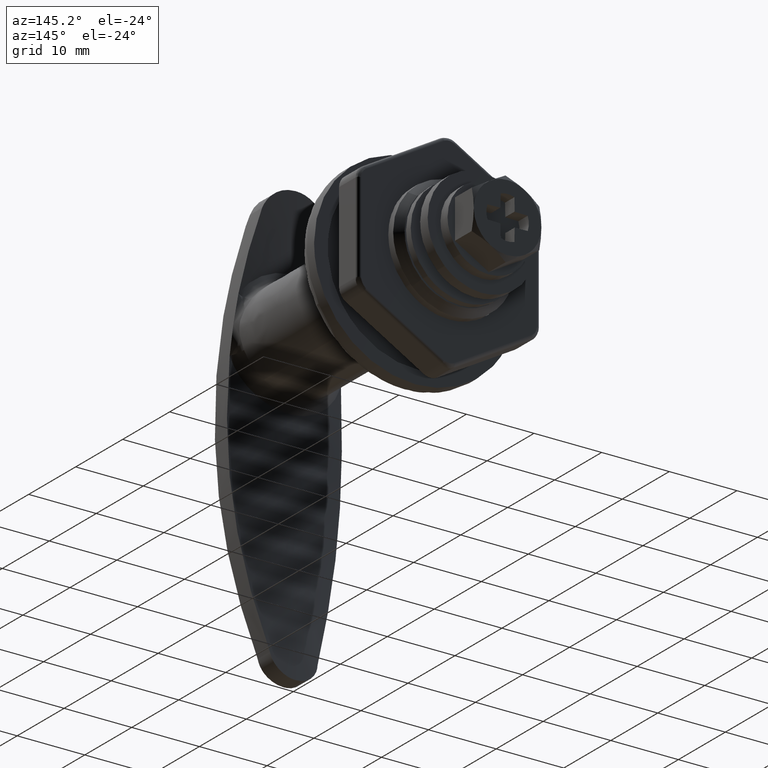
[diagram: clean part render]
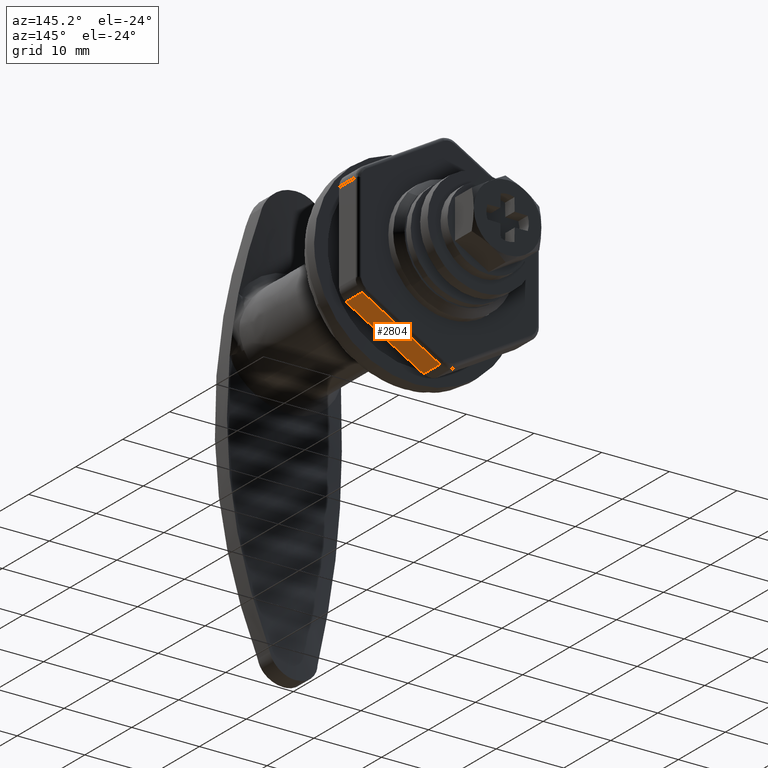
[diagram: same view with one face highlighted and labeled with its STEP entity id]
A machine part, auxiliary view. The second image highlights one B-rep face of the part: STEP entity #2804.
In plain terms, the highlighted face is a freeform B-spline surface patch.
Its self-contained STEP definition (entity closure, byte-faithful):
#2317=CARTESIAN_POINT('',(12.661437827766200,-12.500053304813600,-8.371969222264170));
#2318=VERTEX_POINT('',#2317);
#2424=CARTESIAN_POINT('',(12.661437827766200,-1.000053304813588,-15.011969222264250));
#2425=VERTEX_POINT('',#2424);
#2444=CARTESIAN_POINT('',(12.661437827766200,-1.000053304813588,-15.011969222264250));
#2445=CARTESIAN_POINT('',(12.661437827766200,-12.500053304813600,-8.371969222264170));
#2446=QUASI_UNIFORM_CURVE('',1,(#2444,#2445),.UNSPECIFIED.,.F.,.U.);
#2447=EDGE_CURVE('',#2425,#2318,#2446,.T.);
#2685=CARTESIAN_POINT('',(9.161437827766150,-1.000053304813584,-15.011969222264250));
#2686=VERTEX_POINT('',#2685);
#2687=CARTESIAN_POINT('',(9.161437827766150,-1.000053304813584,-15.011969222264250));
#2688=CARTESIAN_POINT('',(12.661437827766200,-1.000053304813588,-15.011969222264250));
#2689=QUASI_UNIFORM_CURVE('',1,(#2687,#2688),.UNSPECIFIED.,.F.,.U.);
#2690=EDGE_CURVE('',#2686,#2425,#2689,.T.);
#2719=CARTESIAN_POINT('',(9.161437827766150,-12.500053304813600,-8.371969222264170));
#2720=VERTEX_POINT('',#2719);
#2721=CARTESIAN_POINT('',(12.661437827766200,-12.500053304813600,-8.371969222264170));
#2722=CARTESIAN_POINT('',(9.161437827766150,-12.500053304813600,-8.371969222264170));
#2723=QUASI_UNIFORM_CURVE('',1,(#2721,#2722),.UNSPECIFIED.,.F.,.U.);
#2724=EDGE_CURVE('',#2318,#2720,#2723,.T.);
#2789=CARTESIAN_POINT('',(8.986612998827305,-0.425628111195281,-15.343637334057799));
#2790=CARTESIAN_POINT('',(8.986612998827305,-13.074478601249920,-8.040301051104398));
#2791=CARTESIAN_POINT('',(12.836262907044549,-0.425628111195281,-15.343637334057799));
#2792=CARTESIAN_POINT('',(12.836262907044549,-13.074478601249920,-8.040301051104398));
#2793=B_SPLINE_SURFACE_WITH_KNOTS('',1,1,((#2789,#2791),(#2790,#2792)),.UNSPECIFIED.,.F.,.F.,.U.,(2,2),(2,2),(0.0,14.605894001452260),(0.0,3.849649908217246),.UNSPECIFIED.);
#2794=ORIENTED_EDGE('',*,*,#2690,.T.);
#2795=ORIENTED_EDGE('',*,*,#2447,.T.);
#2796=ORIENTED_EDGE('',*,*,#2724,.T.);
#2797=CARTESIAN_POINT('',(9.161437827766150,-12.500053304813600,-8.371969222264170));
#2798=CARTESIAN_POINT('',(9.161437827766150,-1.000053304813584,-15.011969222264250));
#2799=QUASI_UNIFORM_CURVE('',1,(#2797,#2798),.UNSPECIFIED.,.F.,.U.);
#2800=EDGE_CURVE('',#2720,#2686,#2799,.T.);
#2801=ORIENTED_EDGE('',*,*,#2800,.T.);
#2802=EDGE_LOOP('',(#2794,#2795,#2796,#2801));
#2803=FACE_OUTER_BOUND('',#2802,.T.);
#2804=ADVANCED_FACE('',(#2803),#2793,.F.);